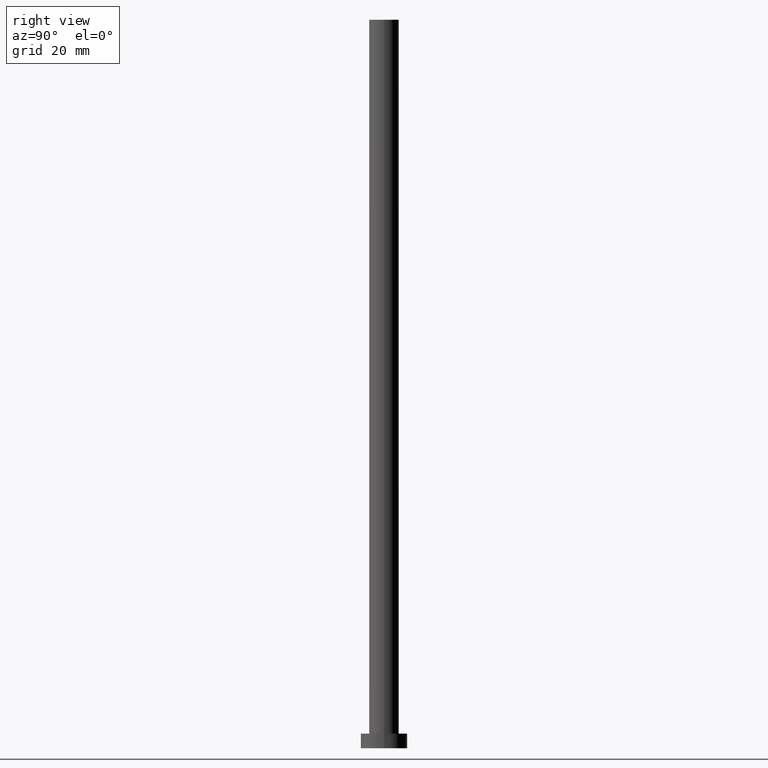
[diagram: clean part render]
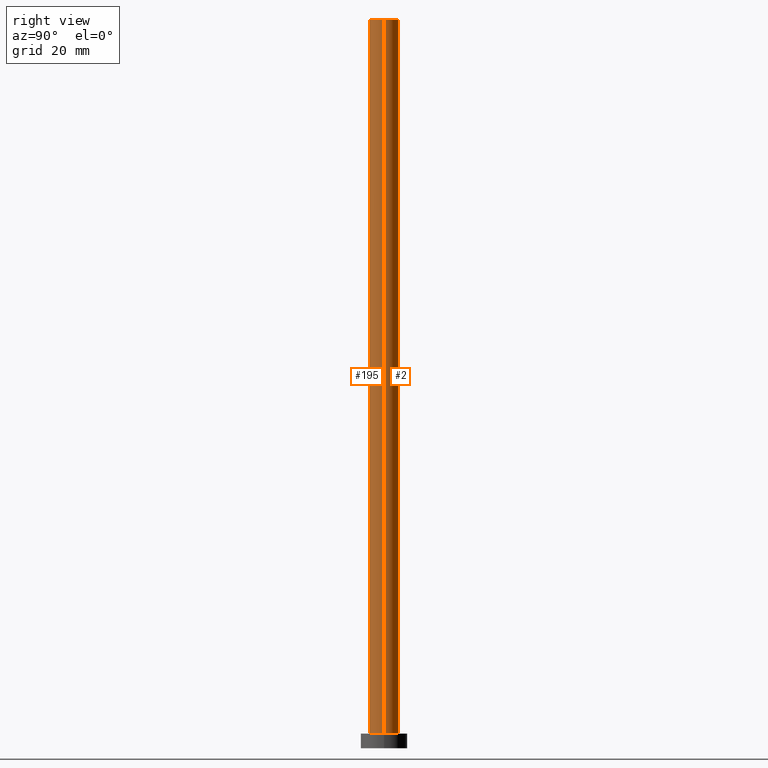
[diagram: same view with one multi-face feature highlighted, each face labeled with its STEP entity id]
A machine part, right view. The highlighted faces form ONE feature: a constant-radius fillet chain: 2 tangent blend faces with common blend radius 5.1 mm. The faces share edges in the B-rep.
Their STEP definitions:
[1] entity #2 (Cylinder):
#2 = ADVANCED_FACE ( 'NONE', ( #54 ), #114, .T. ) ;
#11 = VERTEX_POINT ( 'NONE', #187 ) ;
#15 = LINE ( 'NONE', #180, #62 ) ;
#26 = LINE ( 'NONE', #106, #222 ) ;
#35 = CARTESIAN_POINT ( 'NONE',  ( 0.000000000000000000, 0.000000000000000000, 250.0000000000000000 ) ) ;
#40 = CARTESIAN_POINT ( 'NONE',  ( 0.000000000000000000, 0.000000000000000000, 5.000000000000000000 ) ) ;
#42 = VERTEX_POINT ( 'NONE', #251 ) ;
#43 = AXIS2_PLACEMENT_3D ( 'NONE', #40, #219, #170 ) ;
#50 = EDGE_CURVE ( 'NONE', #42, #208, #15, .T. ) ;
#52 = CARTESIAN_POINT ( 'NONE',  ( -5.099999999999999645, 0.000000000000000000, 5.000000000000000000 ) ) ;
#54 = FACE_OUTER_BOUND ( 'NONE', #235, .T. ) ;
#62 = VECTOR ( 'NONE', #92, 1000.000000000000000 ) ;
#63 = CIRCLE ( 'NONE', #98, 5.099999999999999645 ) ;
#66 = CARTESIAN_POINT ( 'NONE',  ( 5.099999999999999645, 6.245698675651500839E-16, 5.000000000000000000 ) ) ;
#70 = CARTESIAN_POINT ( 'NONE',  ( 0.000000000000000000, 0.000000000000000000, 250.0000000000000000 ) ) ;
#92 = DIRECTION ( 'NONE',  ( -0.000000000000000000, -0.000000000000000000, -1.000000000000000000 ) ) ;
#98 = AXIS2_PLACEMENT_3D ( 'NONE', #70, #202, #110 ) ;
#106 = CARTESIAN_POINT ( 'NONE',  ( 5.099999999999999645, 6.245698675651500839E-16, 250.0000000000000000 ) ) ;
#109 = ORIENTED_EDGE ( 'NONE', *, *, #50, .F. ) ;
#110 = DIRECTION ( 'NONE',  ( 1.000000000000000000, 0.000000000000000000, 0.000000000000000000 ) ) ;
#112 = EDGE_CURVE ( 'NONE', #198, #208, #123, .T. ) ;
#114 = CYLINDRICAL_SURFACE ( 'NONE', #151, 5.099999999999999645 ) ;
#123 = CIRCLE ( 'NONE', #43, 5.099999999999999645 ) ;
#136 = DIRECTION ( 'NONE',  ( -0.000000000000000000, -0.000000000000000000, -1.000000000000000000 ) ) ;
#151 = AXIS2_PLACEMENT_3D ( 'NONE', #35, #136, #152 ) ;
#152 = DIRECTION ( 'NONE',  ( -1.000000000000000000, 0.000000000000000000, 0.000000000000000000 ) ) ;
#153 = EDGE_CURVE ( 'NONE', #11, #198, #26, .T. ) ;
#170 = DIRECTION ( 'NONE',  ( 1.000000000000000000, 0.000000000000000000, 0.000000000000000000 ) ) ;
#180 = CARTESIAN_POINT ( 'NONE',  ( -5.099999999999999645, 0.000000000000000000, 250.0000000000000000 ) ) ;
#187 = CARTESIAN_POINT ( 'NONE',  ( 5.099999999999999645, 6.245698675651500839E-16, 250.0000000000000000 ) ) ;
#190 = ORIENTED_EDGE ( 'NONE', *, *, #112, .T. ) ;
#192 = EDGE_CURVE ( 'NONE', #11, #42, #63, .T. ) ;
#198 = VERTEX_POINT ( 'NONE', #66 ) ;
#202 = DIRECTION ( 'NONE',  ( 0.000000000000000000, 0.000000000000000000, 1.000000000000000000 ) ) ;
#208 = VERTEX_POINT ( 'NONE', #52 ) ;
#219 = DIRECTION ( 'NONE',  ( 0.000000000000000000, 0.000000000000000000, 1.000000000000000000 ) ) ;
#222 = VECTOR ( 'NONE', #229, 1000.000000000000000 ) ;
#229 = DIRECTION ( 'NONE',  ( -0.000000000000000000, -0.000000000000000000, -1.000000000000000000 ) ) ;
#235 = EDGE_LOOP ( 'NONE', ( #240, #246, #190, #109 ) ) ;
#240 = ORIENTED_EDGE ( 'NONE', *, *, #192, .F. ) ;
#246 = ORIENTED_EDGE ( 'NONE', *, *, #153, .T. ) ;
#251 = CARTESIAN_POINT ( 'NONE',  ( -5.099999999999999645, 0.000000000000000000, 250.0000000000000000 ) ) ;
[2] entity #195 (Cylinder):
#10 = DIRECTION ( 'NONE',  ( 1.000000000000000000, 0.000000000000000000, 0.000000000000000000 ) ) ;
#11 = VERTEX_POINT ( 'NONE', #187 ) ;
#14 = AXIS2_PLACEMENT_3D ( 'NONE', #159, #172, #221 ) ;
#15 = LINE ( 'NONE', #180, #62 ) ;
#26 = LINE ( 'NONE', #106, #222 ) ;
#27 = ORIENTED_EDGE ( 'NONE', *, *, #122, .F. ) ;
#32 = CYLINDRICAL_SURFACE ( 'NONE', #182, 5.099999999999999645 ) ;
#42 = VERTEX_POINT ( 'NONE', #251 ) ;
#50 = EDGE_CURVE ( 'NONE', #42, #208, #15, .T. ) ;
#52 = CARTESIAN_POINT ( 'NONE',  ( -5.099999999999999645, 0.000000000000000000, 5.000000000000000000 ) ) ;
#58 = CIRCLE ( 'NONE', #14, 5.099999999999999645 ) ;
#62 = VECTOR ( 'NONE', #92, 1000.000000000000000 ) ;
#66 = CARTESIAN_POINT ( 'NONE',  ( 5.099999999999999645, 6.245698675651500839E-16, 5.000000000000000000 ) ) ;
#84 = CARTESIAN_POINT ( 'NONE',  ( 0.000000000000000000, 0.000000000000000000, 250.0000000000000000 ) ) ;
#86 = FACE_OUTER_BOUND ( 'NONE', #181, .T. ) ;
#88 = ORIENTED_EDGE ( 'NONE', *, *, #201, .T. ) ;
#92 = DIRECTION ( 'NONE',  ( -0.000000000000000000, -0.000000000000000000, -1.000000000000000000 ) ) ;
#100 = ORIENTED_EDGE ( 'NONE', *, *, #50, .T. ) ;
#106 = CARTESIAN_POINT ( 'NONE',  ( 5.099999999999999645, 6.245698675651500839E-16, 250.0000000000000000 ) ) ;
#122 = EDGE_CURVE ( 'NONE', #42, #11, #58, .T. ) ;
#128 = CARTESIAN_POINT ( 'NONE',  ( 0.000000000000000000, 0.000000000000000000, 5.000000000000000000 ) ) ;
#153 = EDGE_CURVE ( 'NONE', #11, #198, #26, .T. ) ;
#159 = CARTESIAN_POINT ( 'NONE',  ( 0.000000000000000000, 0.000000000000000000, 250.0000000000000000 ) ) ;
#163 = AXIS2_PLACEMENT_3D ( 'NONE', #128, #227, #10 ) ;
#165 = ORIENTED_EDGE ( 'NONE', *, *, #153, .F. ) ;
#172 = DIRECTION ( 'NONE',  ( 0.000000000000000000, 0.000000000000000000, 1.000000000000000000 ) ) ;
#179 = DIRECTION ( 'NONE',  ( -0.000000000000000000, -0.000000000000000000, -1.000000000000000000 ) ) ;
#180 = CARTESIAN_POINT ( 'NONE',  ( -5.099999999999999645, 0.000000000000000000, 250.0000000000000000 ) ) ;
#181 = EDGE_LOOP ( 'NONE', ( #165, #27, #100, #88 ) ) ;
#182 = AXIS2_PLACEMENT_3D ( 'NONE', #84, #179, #243 ) ;
#187 = CARTESIAN_POINT ( 'NONE',  ( 5.099999999999999645, 6.245698675651500839E-16, 250.0000000000000000 ) ) ;
#195 = ADVANCED_FACE ( 'NONE', ( #86 ), #32, .T. ) ;
#198 = VERTEX_POINT ( 'NONE', #66 ) ;
#201 = EDGE_CURVE ( 'NONE', #208, #198, #245, .T. ) ;
#208 = VERTEX_POINT ( 'NONE', #52 ) ;
#221 = DIRECTION ( 'NONE',  ( 1.000000000000000000, 0.000000000000000000, 0.000000000000000000 ) ) ;
#222 = VECTOR ( 'NONE', #229, 1000.000000000000000 ) ;
#227 = DIRECTION ( 'NONE',  ( 0.000000000000000000, 0.000000000000000000, 1.000000000000000000 ) ) ;
#229 = DIRECTION ( 'NONE',  ( -0.000000000000000000, -0.000000000000000000, -1.000000000000000000 ) ) ;
#243 = DIRECTION ( 'NONE',  ( -1.000000000000000000, 0.000000000000000000, 0.000000000000000000 ) ) ;
#245 = CIRCLE ( 'NONE', #163, 5.099999999999999645 ) ;
#251 = CARTESIAN_POINT ( 'NONE',  ( -5.099999999999999645, 0.000000000000000000, 250.0000000000000000 ) ) ;